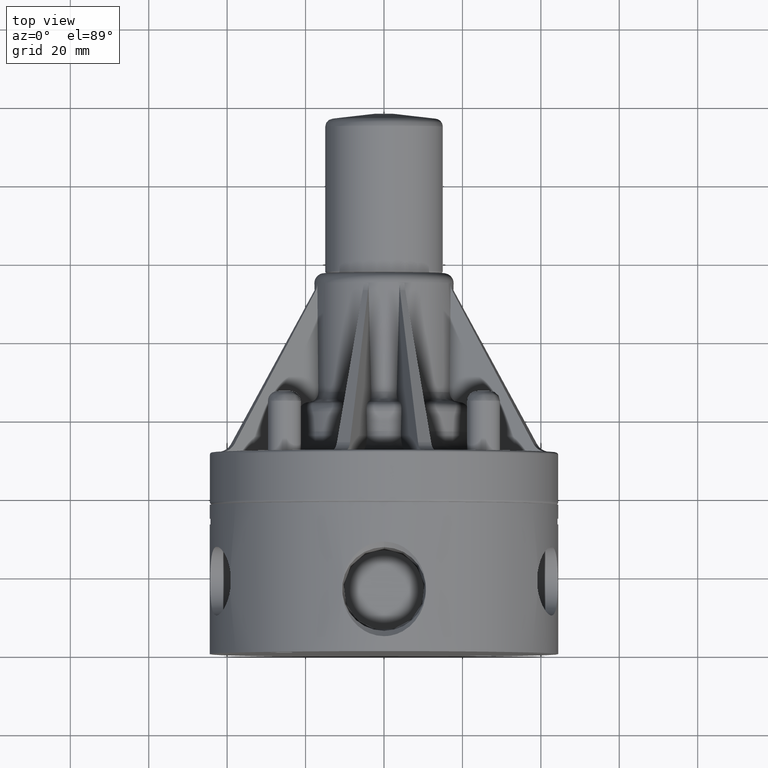
[diagram: clean part render]
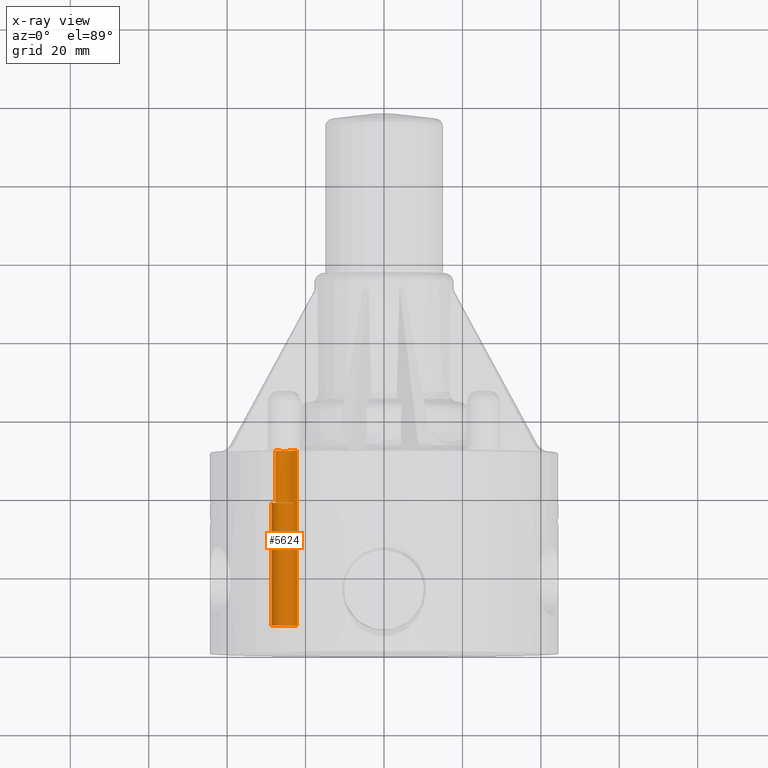
[diagram: x-ray — body ghosted, one internal face saturated and labeled with its STEP entity id]
A machine part, top view, then the same camera in x-ray: the body is ghosted and one INTERNAL B-rep face — a face not visible from any outside direction — is saturated and labeled: STEP entity #5624.
In plain terms, the highlighted cylindrical surface (bore or boss wall) has radius 3.2512 mm, axis along (-0, -1, -0).
Its self-contained STEP definition (entity closure, byte-faithful):
#5561=CARTESIAN_POINT('',(-1.090434130796352,2.025000000000001,0.909414857801578));
#5562=VERTEX_POINT('',#5561);
#5563=CARTESIAN_POINT('',(-0.909414857801368,2.025000000000001,1.090434130796143));
#5564=VERTEX_POINT('',#5563);
#5565=CARTESIAN_POINT('',(-1.000000000000000,2.024999999999997,1.0));
#5566=DIRECTION('',(0.0,-1.0,0.0));
#5567=DIRECTION('',(1.0,0.0,0.0));
#5568=AXIS2_PLACEMENT_3D('',#5565,#5566,#5567);
#5569=CIRCLE('',#5568,0.128000000000000);
#5570=EDGE_CURVE('',#5562,#5564,#5569,.T.);
#5582=CARTESIAN_POINT('',(-1.000000000000000,1.372500000000000,1.0));
#5583=DIRECTION('',(-2.331491E-016,-1.0,-2.619265E-031));
#5584=DIRECTION('',(1.0,0.0,0.0));
#5585=AXIS2_PLACEMENT_3D('',#5582,#5583,#5584);
#5586=CYLINDRICAL_SURFACE('',#5585,0.128000000000000);
#5587=ORIENTED_EDGE('',*,*,#5570,.T.);
#5588=CARTESIAN_POINT('',(-0.909414857801369,1.500000000000000,1.090434130796143));
#5589=VERTEX_POINT('',#5588);
#5590=CARTESIAN_POINT('',(-0.909414857801369,1.500000000000000,1.090434130796143));
#5591=DIRECTION('',(0.0,1.0,0.0));
#5592=VECTOR('',#5591,0.525000000000001);
#5593=LINE('',#5590,#5592);
#5594=EDGE_CURVE('',#5589,#5564,#5593,.T.);
#5595=ORIENTED_EDGE('',*,*,#5594,.F.);
#5596=CARTESIAN_POINT('',(-1.090434130796352,1.500000000000000,0.909414857801578));
#5597=VERTEX_POINT('',#5596);
#5598=CARTESIAN_POINT('',(-1.000000000000000,1.500000000000000,1.0));
#5599=DIRECTION('',(0.0,1.0,0.0));
#5600=DIRECTION('',(1.0,0.0,0.0));
#5601=AXIS2_PLACEMENT_3D('',#5598,#5599,#5600);
#5602=CIRCLE('',#5601,0.128000000000000);
#5603=EDGE_CURVE('',#5597,#5589,#5602,.T.);
#5604=ORIENTED_EDGE('',*,*,#5603,.F.);
#5605=CARTESIAN_POINT('',(-1.090434130796352,2.025000000000001,0.909414857801578));
#5606=DIRECTION('',(0.0,-1.0,0.0));
#5607=VECTOR('',#5606,0.525000000000001);
#5608=LINE('',#5605,#5607);
#5609=EDGE_CURVE('',#5562,#5597,#5608,.T.);
#5610=ORIENTED_EDGE('',*,*,#5609,.F.);
#5611=EDGE_LOOP('',(#5587,#5595,#5604,#5610));
#5612=FACE_OUTER_BOUND('',#5611,.T.);
#5613=CARTESIAN_POINT('',(-0.872000000000000,0.270000000000000,1.0));
#5614=VERTEX_POINT('',#5613);
#5615=CARTESIAN_POINT('',(-1.0,0.270000000000000,1.0));
#5616=DIRECTION('',(0.0,-1.0,0.0));
#5617=DIRECTION('',(1.0,0.0,0.0));
#5618=AXIS2_PLACEMENT_3D('',#5615,#5616,#5617);
#5619=CIRCLE('',#5618,0.128000000000000);
#5620=EDGE_CURVE('',#5614,#5614,#5619,.T.);
#5621=ORIENTED_EDGE('',*,*,#5620,.F.);
#5622=EDGE_LOOP('',(#5621));
#5623=FACE_BOUND('',#5622,.T.);
#5624=ADVANCED_FACE('',(#5612,#5623),#5586,.T.);